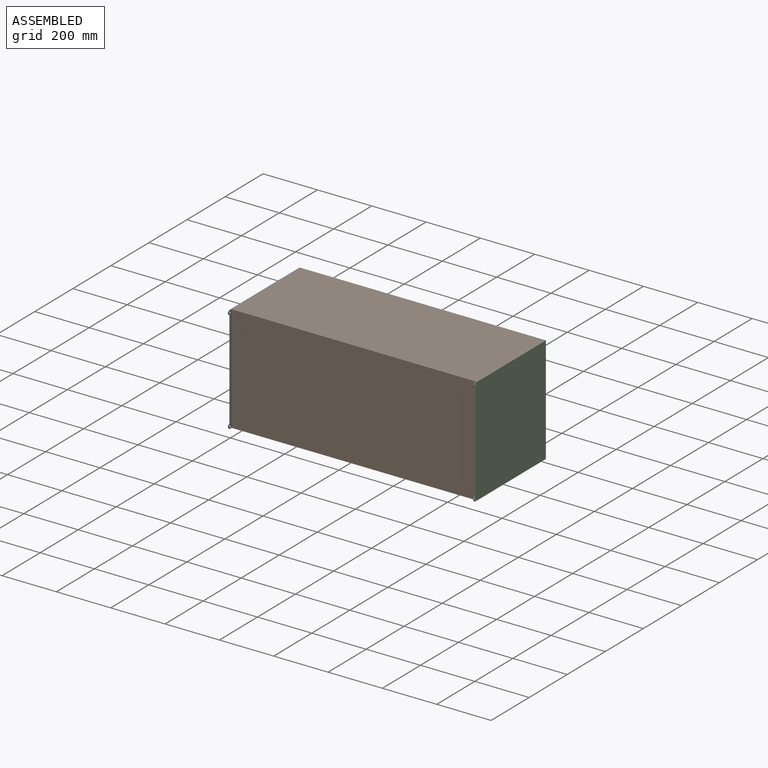
[diagram: assembled view]
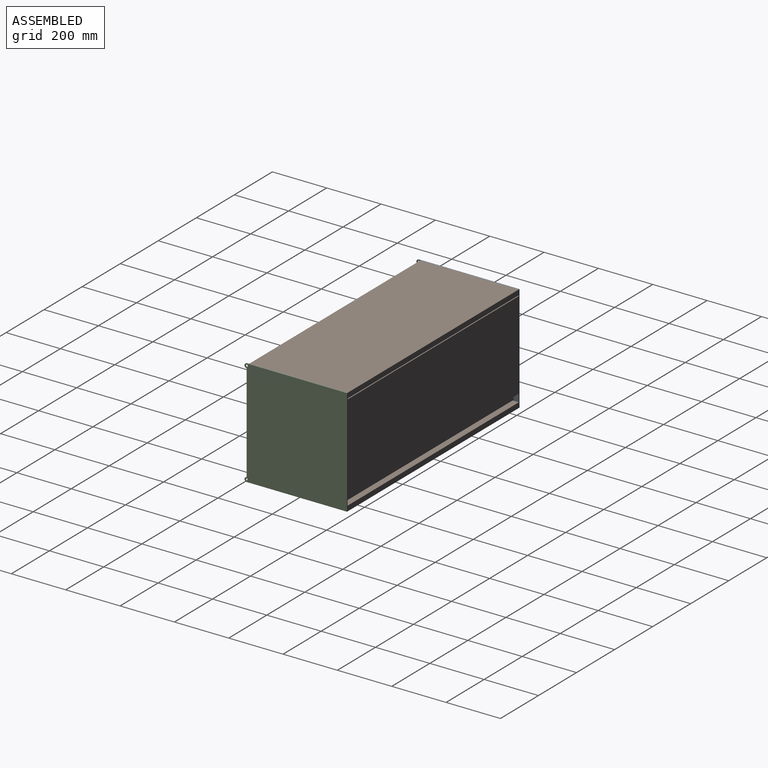
[diagram: assembled view, second angle]
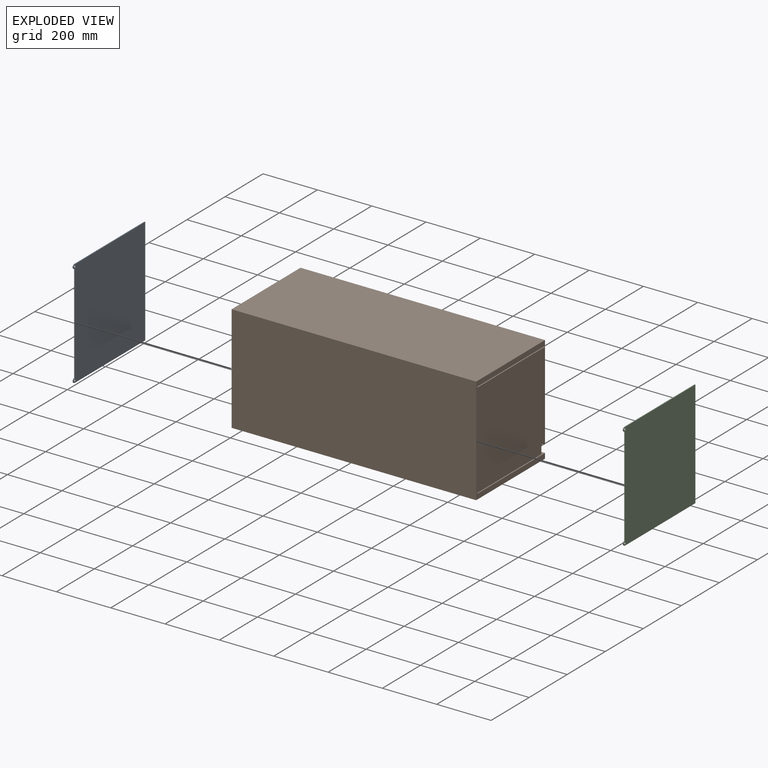
[diagram: exploded view]
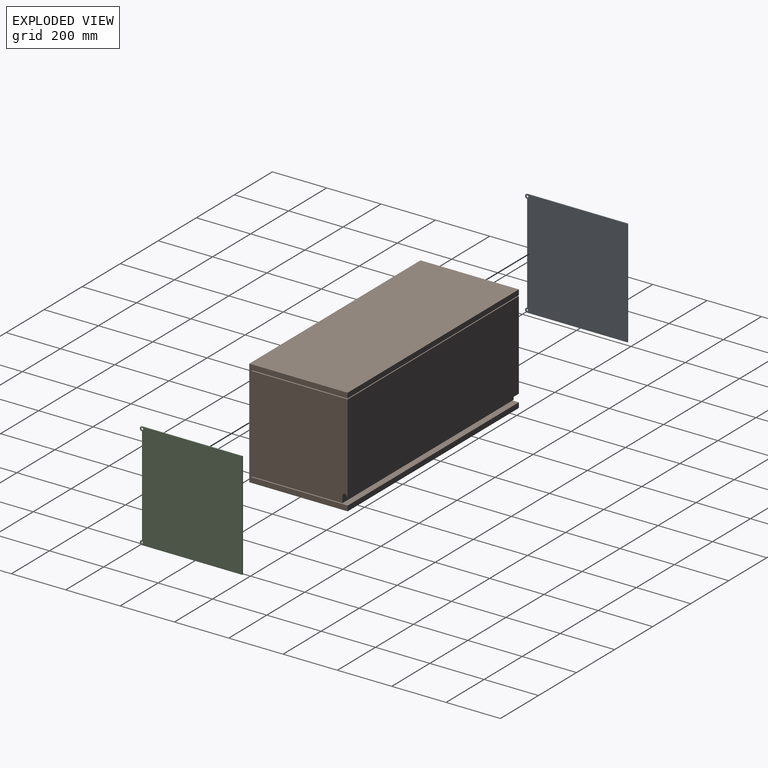
[diagram: exploded view, second angle]
ASSEMBLY  parts=3 mates=2
PART A: 10 faces, bbox 3.2x377.4x394.5 mm
  f0: cylinder r=7.87mm len=15.75mm, axis (-1,0,0), area 78.5mm2, adj f1,f7,f8,f9
  f1: plane 362.99x3.18mm, normal (0,-1,0), area 1152.5mm2, adj f0,f2,f8,f9
  f2: cylinder r=7.87mm len=15.75mm, axis (-1,0,0), area 78.5mm2, adj f1,f3,f8,f9
  f3: plane 369.49x3.18mm, normal (0,0,-1), area 1173.1mm2, adj f2,f4,f8,f9
  f4: plane 394.49x3.18mm, normal (0,1,0), area 1252.5mm2, adj f3,f7,f8,f9
  f5: cylinder r=4mm len=8mm, axis (-1,0,0), area 79.8mm2, adj f8,f9
  f6: cylinder r=4mm len=8mm, axis (-1,0,0), area 79.8mm2, adj f8,f9
  f7: plane 369.49x3.18mm, normal (0,0,1), area 1173.1mm2, adj f0,f4,f8,f9
  f8: plane 394.49x377.37mm, normal (1,0,0), area 145854.9mm2, adj f0,f1,f2,f3,f4,f5,f6,f7
  f9: plane 394.49x377.37mm, normal (-1,0,0), area 145854.9mm2, adj f0,f1,f2,f3,f4,f5,f6,f7
PART B: 24 faces, bbox 900.1x362x394.5 mm
  f0: plane 900.11x324.74mm, normal (0,1,0), area 292301.6mm2, adj f2,f7,f11,f16
  f1: plane 900.11x19mm, normal (0,1,0), area 17101.4mm2, adj f2,f6,f7,f9
  f2: plane 394.49x361.95mm, normal (-1,0,0), area 139939.3mm2, adj f0,f1,f3,f4,f5,f6,f8,f9
  f3: plane 900.11x394.49mm, normal (0,-1,0), area 355083mm2, adj f2,f4,f6,f7
  f4: plane 900.11x361.95mm, normal (0,0,1), area 325795.7mm2, adj f2,f3,f5,f7
  f5: plane 900.11x19mm, normal (0,1,0), area 17101.4mm2, adj f2,f4,f7,f12
  f6: plane 900.11x361.95mm, normal (0,0,-1), area 325795.7mm2, adj f1,f2,f3,f7
  f7: plane 394.49x361.95mm, normal (1,0,0), area 139939.3mm2, adj f0,f1,f3,f4,f5,f6,f8,f9
  f8: plane 900.11x336.55mm, normal (0,0,-1), area 302932.9mm2, adj f2,f7,f10,f14
  f9: plane 900.11x355.6mm, normal (0,0,1), area 320080mm2, adj f1,f2,f7,f10
  f10: plane 900.11x3.18mm, normal (0,1,0), area 2857.9mm2, adj f2,f7,f8,f9
  f11: plane 900.11x355.6mm, normal (0,0,1), area 40917.3mm2, adj f0,f2,f7,f13,f17,f18,f19,f20
  f12: plane 900.11x355.6mm, normal (0,0,-1), area 320080mm2, adj f2,f5,f7,f13
  f13: plane 900.11x3.18mm, normal (0,1,0), area 2857.9mm2, adj f2,f7,f11,f12
  f14: plane 900.11x25.4mm, normal (0,1,0), area 22862.9mm2, adj f2,f7,f8,f15
  f15: cylinder r=8.12mm len=900.11mm, axis (-1,0,0), area 22949mm2, adj f2,f7,f14,f16
  f16: plane 900.11x2.82mm, normal (0,0,-1), area 2537.4mm2, adj f0,f2,f7,f15
  f17: plane 862.01x298.81mm, normal (0,-1,0), area 257581.4mm2, adj f11,f18,f20,f23
  f18: plane 331.09x323.85mm, normal (1,0,0), area 106739.7mm2, adj f11,f17,f19,f21,f22,f23
  f19: plane 862.01x331.09mm, normal (0,1,0), area 285402.9mm2, adj f11,f18,f20,f21
  f20: plane 331.09x323.85mm, normal (-1,0,0), area 106739.7mm2, adj f11,f17,f19,f21,f22,f23
  f21: plane 862.01x304.8mm, normal (0,0,1), area 262741.4mm2, adj f18,f19,f20,f22
  f22: plane 862.01x6.35mm, normal (0,-1,0), area 5473.8mm2, adj f18,f20,f21,f23
  f23: cylinder r=27.17mm len=862.01mm, axis (-1,0,0), area 29679.2mm2, adj f17,f18,f20,f22
PART C: same geometry as A
PLACE A t=(-2821.4,5560.34,-4862.08)mm
PLACE B t=(-2988.59,5560.34,-1394.45)mm
PLACE C t=(-1918.11,5560.34,-4862.08)mm
MATE fastened A.f8 <-> B.f2  axis (1,0,0) through (-2818.22,-2605.16,-1931.07)mm
MATE fastened C.f9 <-> B.f7  axis (-1,0,0) through (-1918.11,-2605.16,-1931.07)mm
